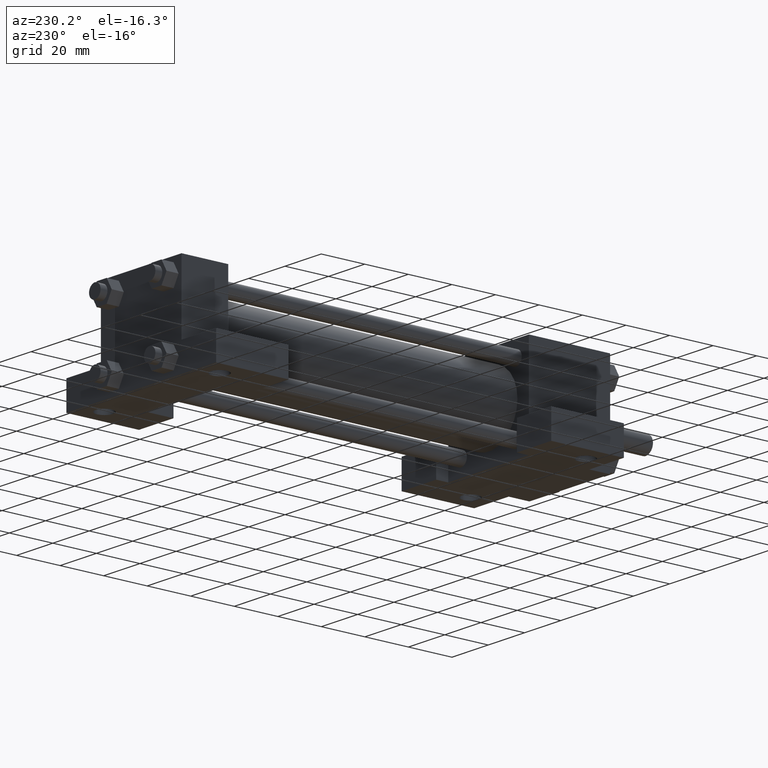
[diagram: clean part render]
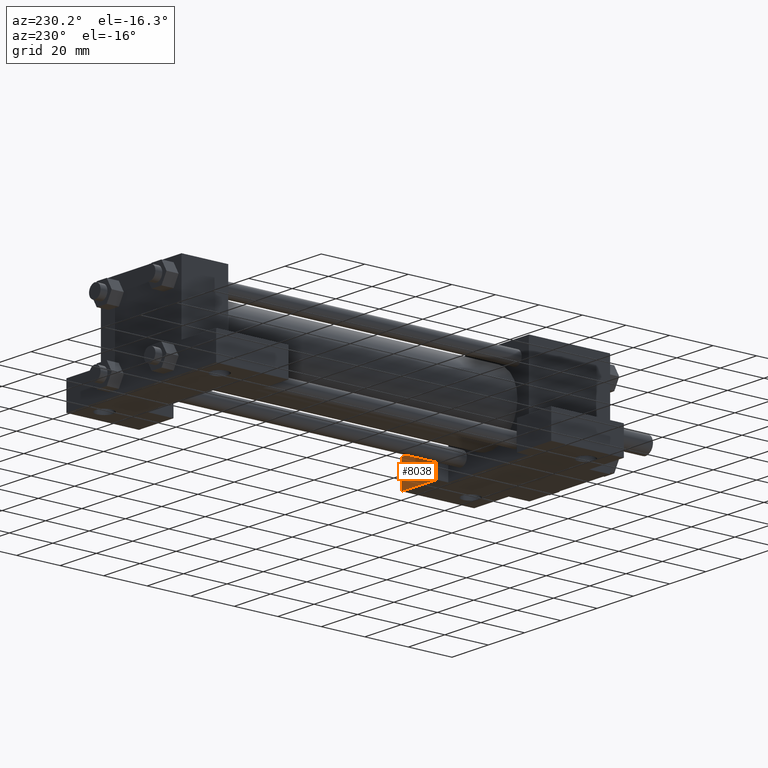
[diagram: same view with one face highlighted and labeled with its STEP entity id]
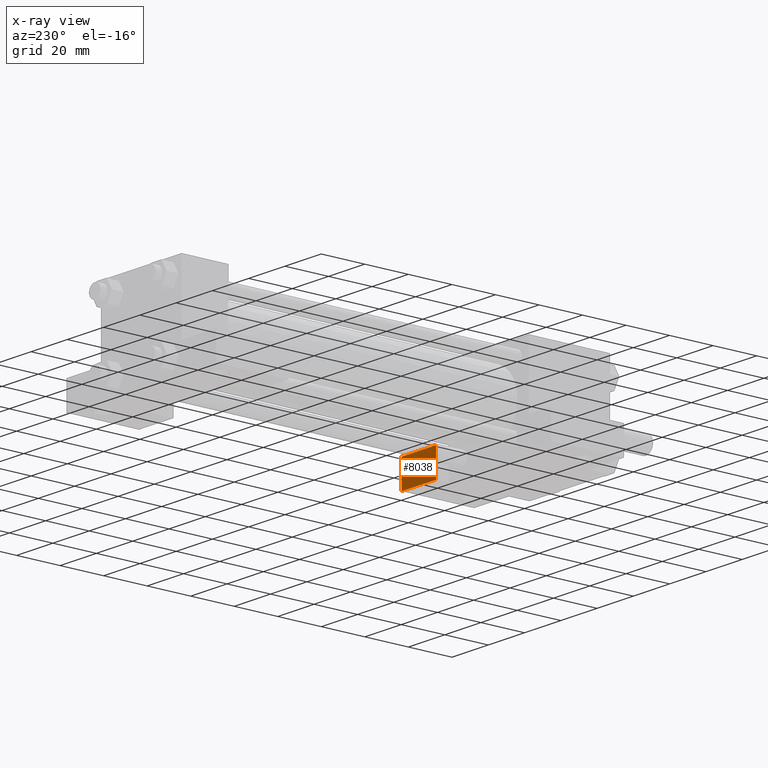
[diagram: x-ray of the same camera — body ghosted, the highlighted face saturated]
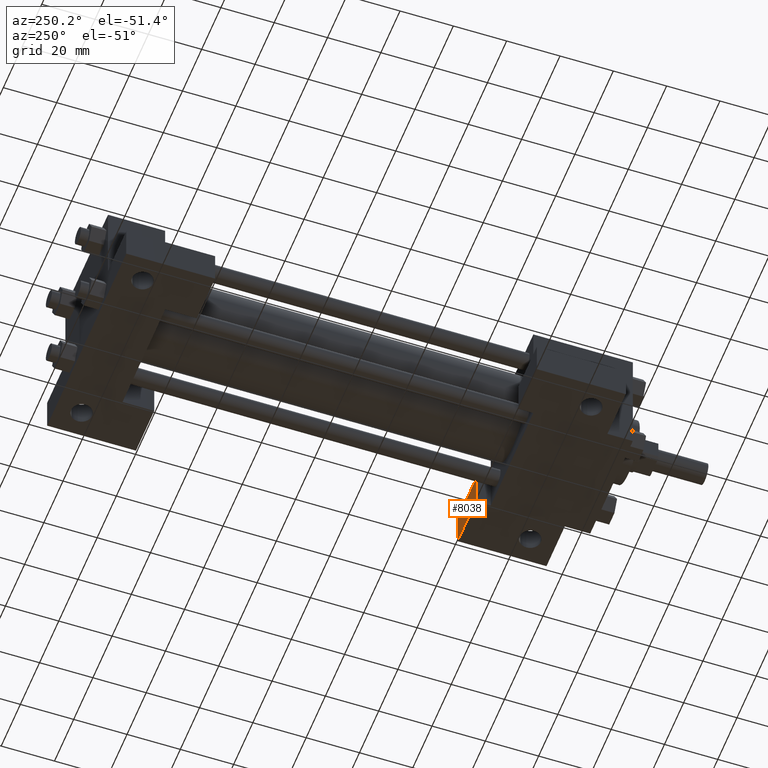
[diagram: same view with one face highlighted and labeled with its STEP entity id]
A machine part, auxiliary view. The second image highlights one B-rep face of the part: STEP entity #8038.
The next image is the same camera in x-ray: the body ghosted, the highlighted face saturated — about 3% of this face is hidden behind the body in this view.
A second angle (auxiliary view) of the same face is appended — the face is thin or edge-on in the first view.
In plain terms, the highlighted planar face has unit normal (0, -1, 0).
Its self-contained STEP definition (entity closure, byte-faithful):
#1694=VERTEX_POINT('',#1696);
#1696=CARTESIAN_POINT('',(4.127500000E+001,5.873750000E+001,-9.525000000E+000));
#1697=EDGE_CURVE('',#1694,#1702,#1698,.T.);
#1698=LINE('',#1699,#1700);
#1699=CARTESIAN_POINT('',(4.127500000E+001,5.873750000E+001,-9.525000000E+000));
#1700=VECTOR('',#1701,1.0E+000);
#1701=DIRECTION('',(-1.0E+000,0.0E+000,0.0E+000));
#1702=VERTEX_POINT('',#1703);
#1703=CARTESIAN_POINT('',(2.222500000E+001,5.873750000E+001,-9.525000000E+000));
#1754=FACE_OUTER_BOUND('',#1755,.T.);
#1755=EDGE_LOOP('',(#1756,#1757,#1758,#1759));
#1756=ORIENTED_EDGE('',*,*,#1760,.T.);
#1757=ORIENTED_EDGE('',*,*,#1769,.F.);
#1758=ORIENTED_EDGE('',*,*,#1697,.F.);
#1759=ORIENTED_EDGE('',*,*,#1774,.T.);
#1760=EDGE_CURVE('',#1765,#1766,#1761,.T.);
#1761=LINE('',#1762,#1763);
#1762=CARTESIAN_POINT('',(4.127500000E+001,5.873750000E+001,-2.222500000E+001));
#1763=VECTOR('',#1764,1.0E+000);
#1764=DIRECTION('',(-1.0E+000,0.0E+000,0.0E+000));
#1765=VERTEX_POINT('',#1767);
#1766=VERTEX_POINT('',#1768);
#1767=CARTESIAN_POINT('',(4.127500000E+001,5.873750000E+001,-2.222500000E+001));
#1768=CARTESIAN_POINT('',(2.222500000E+001,5.873750000E+001,-2.222500000E+001));
#1769=EDGE_CURVE('',#1702,#1766,#1770,.T.);
#1770=LINE('',#1771,#1772);
#1771=CARTESIAN_POINT('',(2.222500000E+001,5.873750000E+001,-9.525000000E+000));
#1772=VECTOR('',#1773,1.0E+000);
#1773=DIRECTION('',(0.0E+000,0.0E+000,-1.0E+000));
#1774=EDGE_CURVE('',#1694,#1765,#1775,.T.);
#1775=LINE('',#1776,#1777);
#1776=CARTESIAN_POINT('',(4.127500000E+001,5.873750000E+001,-9.525000000E+000));
#1777=VECTOR('',#1778,1.0E+000);
#1778=DIRECTION('',(0.0E+000,0.0E+000,-1.0E+000));
#1779=PLANE('',#1780);
#1780=AXIS2_PLACEMENT_3D('',#1781,#1782,#1783);
#1781=CARTESIAN_POINT('',(4.127500000E+001,5.873750000E+001,-9.525000000E+000));
#1782=DIRECTION('',(0.0E+000,-1.0E+000,0.0E+000));
#1783=DIRECTION('',(0.0E+000,0.0E+000,-1.0E+000));
#8038=ADVANCED_FACE('',(#1754),#1779,.F.);